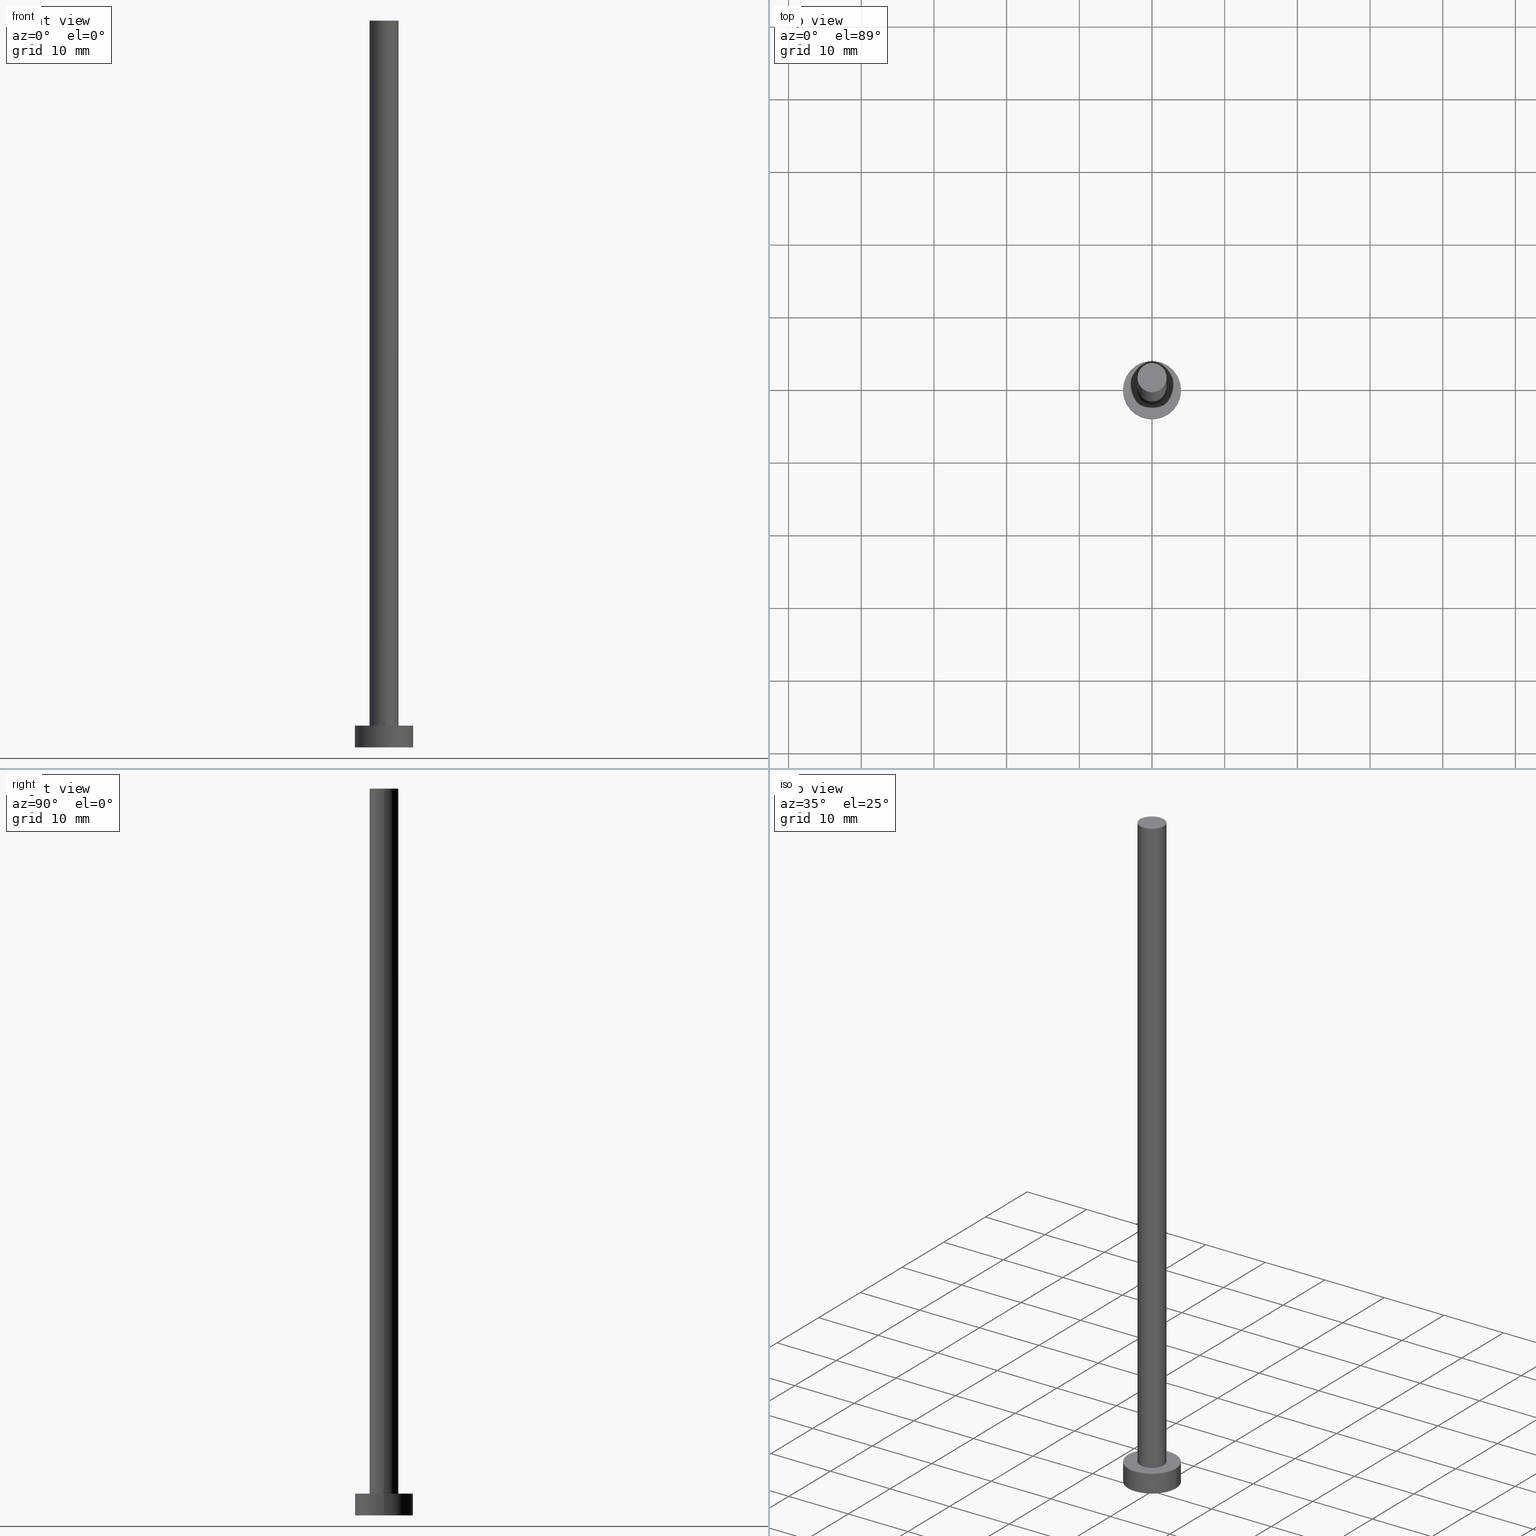
[diagram: canonical four-view strip — front | top / right | iso, engineering-drawing reading convention]
A machine part, canonical four-view strip (front | top / right | iso — engineering-drawing reading convention). The complete STEP part file that produces these views, byte-faithful:
ISO-10303-21;
HEADER;
FILE_DESCRIPTION (( 'STEP AP203' ),
    '1' );
FILE_NAME ('65ca.STEP',
    '2023-02-13T15:33:52',
    ( '' ),
    ( '' ),
    'SwSTEP 2.0',
    'SolidWorks 2019',
    '' );
FILE_SCHEMA (( 'CONFIG_CONTROL_DESIGN' ));
ENDSEC;

DATA;
#1 = DIRECTION ( 'NONE',  ( 1.000000000000000000, 0.000000000000000000, -0.000000000000000000 ) ) ;
#2 = DIRECTION ( 'NONE',  ( 0.000000000000000000, 0.000000000000000000, 1.000000000000000000 ) ) ;
#3 = DIRECTION ( 'NONE',  ( 1.000000000000000000, 0.000000000000000000, 0.000000000000000000 ) ) ;
#4 = DIRECTION ( 'NONE',  ( 0.000000000000000000, 0.000000000000000000, 1.000000000000000000 ) ) ;
#5 = EDGE_LOOP ( 'NONE', ( #64, #246, #200, #195 ) ) ;
#6 = AXIS2_PLACEMENT_3D ( 'NONE', #87, #191, #193 ) ;
#7 = DIRECTION ( 'NONE',  ( 0.000000000000000000, 0.000000000000000000, 1.000000000000000000 ) ) ;
#8 = EDGE_LOOP ( 'NONE', ( #243, #105, #41, #53 ) ) ;
#9 = UNCERTAINTY_MEASURE_WITH_UNIT (LENGTH_MEASURE( 1.000000000000000082E-05 ), #49, 'distance_accuracy_value', 'NONE');
#10 = CC_DESIGN_PERSON_AND_ORGANIZATION_ASSIGNMENT ( #24, #128, ( #23 ) ) ;
#11 = DIRECTION ( 'NONE',  ( 1.000000000000000000, 0.000000000000000000, 0.000000000000000000 ) ) ;
#12 = APPROVAL_STATUS ( 'not_yet_approved' ) ;
#13 = DATE_AND_TIME ( #94, #67 ) ;
#14 = SHAPE_DEFINITION_REPRESENTATION ( #245, #240 ) ;
#15 = DIRECTION ( 'NONE',  ( 0.000000000000000000, 0.000000000000000000, 1.000000000000000000 ) ) ;
#16 = CC_DESIGN_PERSON_AND_ORGANIZATION_ASSIGNMENT ( #52, #130, ( #93 ) ) ;
#17 = DIRECTION ( 'NONE',  ( -0.000000000000000000, -0.000000000000000000, -1.000000000000000000 ) ) ;
#18 = EDGE_CURVE ( 'NONE', #198, #66, #110, .T. ) ;
#19 = FACE_OUTER_BOUND ( 'NONE', #202, .T. ) ;
#20 = VERTEX_POINT ( 'NONE', #133 ) ;
#21 = CARTESIAN_POINT ( 'NONE',  ( 0.000000000000000000, 0.000000000000000000, 3.000000000000000000 ) ) ;
#22 = ORIENTED_EDGE ( 'NONE', *, *, #206, .T. ) ;
#23 = PRODUCT ( '65ca', '65ca', '', ( #162 ) ) ;
#24 = PERSON_AND_ORGANIZATION ( #131, #137 ) ;
#25 = ORIENTED_EDGE ( 'NONE', *, *, #217, .T. ) ;
#26 = MANIFOLD_SOLID_BREP ( 'P�idat vysunut�m3', #142 ) ;
#27 = COORDINATED_UNIVERSAL_TIME_OFFSET ( 1, 0, .AHEAD. ) ;
#28 = ORIENTED_EDGE ( 'NONE', *, *, #206, .F. ) ;
#29 = COORDINATED_UNIVERSAL_TIME_OFFSET ( 1, 0, .AHEAD. ) ;
#30 = AXIS2_PLACEMENT_3D ( 'NONE', #96, #15, #152 ) ;
#31 = DIRECTION ( 'NONE',  ( 0.000000000000000000, 0.000000000000000000, 1.000000000000000000 ) ) ;
#32 = CALENDAR_DATE ( 2023, 13, 2 ) ;
#33 = LINE ( 'NONE', #35, #48 ) ;
#34 = CC_DESIGN_DATE_AND_TIME_ASSIGNMENT ( #180, #164, ( #95 ) ) ;
#35 = CARTESIAN_POINT ( 'NONE',  ( 2.000000000000000000, 2.449293598294705921E-16, 100.0000000000000000 ) ) ;
#36 = CIRCLE ( 'NONE', #153, 2.000000000000000000 ) ;
#37 = PRODUCT_DEFINITION_FORMATION_WITH_SPECIFIED_SOURCE ( 'LIBOVOLN�', '', #23, .NOT_KNOWN. ) ;
#38 = CARTESIAN_POINT ( 'NONE',  ( 0.000000000000000000, 0.000000000000000000, 100.0000000000000000 ) ) ;
#39 = EDGE_LOOP ( 'NONE', ( #126, #45, #227, #144 ) ) ;
#40 = CARTESIAN_POINT ( 'NONE',  ( 2.000000000000000000, 2.449293598294705921E-16, 3.000000000000000000 ) ) ;
#41 = ORIENTED_EDGE ( 'NONE', *, *, #135, .T. ) ;
#42 = AXIS2_PLACEMENT_3D ( 'NONE', #174, #171, #1 ) ;
#43 = LOCAL_TIME ( 16, 33, 52.00000000000000000, #127 ) ;
#44 = DIRECTION ( 'NONE',  ( -1.000000000000000000, 0.000000000000000000, 0.000000000000000000 ) ) ;
#45 = ORIENTED_EDGE ( 'NONE', *, *, #148, .T. ) ;
#46 = APPROVAL ( #182, 'NEUR�EN�' ) ;
#47 = DIRECTION ( 'NONE',  ( 1.000000000000000000, 0.000000000000000000, 0.000000000000000000 ) ) ;
#48 = VECTOR ( 'NONE', #211, 1000.000000000000000 ) ;
#49 =( LENGTH_UNIT ( ) NAMED_UNIT ( * ) SI_UNIT ( .MILLI., .METRE. ) );
#50 = APPROVAL_PERSON_ORGANIZATION ( #72, #230, #247 ) ;
#51 = ORIENTED_EDGE ( 'NONE', *, *, #148, .F. ) ;
#52 = PERSON_AND_ORGANIZATION ( #131, #137 ) ;
#53 = ORIENTED_EDGE ( 'NONE', *, *, #18, .T. ) ;
#54 = EDGE_CURVE ( 'NONE', #122, #66, #210, .T. ) ;
#55 = APPLICATION_PROTOCOL_DEFINITION ( 'international standard', 'config_control_design', 1994, #117 ) ;
#56 = CIRCLE ( 'NONE', #236, 2.000000000000000000 ) ;
#57 = LOCAL_TIME ( 16, 33, 52.00000000000000000, #27 ) ;
#58 = DIRECTION ( 'NONE',  ( 1.000000000000000000, 0.000000000000000000, 0.000000000000000000 ) ) ;
#59 = PLANE ( 'NONE',  #42 ) ;
#60 = LINE ( 'NONE', #155, #253 ) ;
#61 = EDGE_CURVE ( 'NONE', #232, #160, #56, .T. ) ;
#62 = CARTESIAN_POINT ( 'NONE',  ( 0.000000000000000000, 0.000000000000000000, 100.0000000000000000 ) ) ;
#63 = CC_DESIGN_PERSON_AND_ORGANIZATION_ASSIGNMENT ( #201, #107, ( #95 ) ) ;
#64 = ORIENTED_EDGE ( 'NONE', *, *, #217, .F. ) ;
#65 = CYLINDRICAL_SURFACE ( 'NONE', #143, 4.000000000000000000 ) ;
#66 = VERTEX_POINT ( 'NONE', #116 ) ;
#67 = LOCAL_TIME ( 16, 33, 52.00000000000000000, #185 ) ;
#68 = CARTESIAN_POINT ( 'NONE',  ( 0.000000000000000000, 0.000000000000000000, 0.000000000000000000 ) ) ;
#69 =( NAMED_UNIT ( * ) SI_UNIT ( $, .STERADIAN. ) SOLID_ANGLE_UNIT ( ) );
#70 = CARTESIAN_POINT ( 'NONE',  ( 4.000000000000000000, 4.898587196589412829E-16, 3.000000000000000000 ) ) ;
#71 = DIRECTION ( 'NONE',  ( 1.000000000000000000, 0.000000000000000000, -0.000000000000000000 ) ) ;
#72 = PERSON_AND_ORGANIZATION ( #131, #137 ) ;
#73 = FACE_OUTER_BOUND ( 'NONE', #178, .T. ) ;
#74 = CARTESIAN_POINT ( 'NONE',  ( -4.000000000000000000, 0.000000000000000000, 3.000000000000000000 ) ) ;
#75 = DIRECTION ( 'NONE',  ( 0.000000000000000000, 0.000000000000000000, 1.000000000000000000 ) ) ;
#76 = VECTOR ( 'NONE', #134, 1000.000000000000000 ) ;
#77 = APPLICATION_CONTEXT ( 'configuration controlled 3d designs of mechanical parts and assemblies' ) ;
#78 = CARTESIAN_POINT ( 'NONE',  ( 0.000000000000000000, 0.000000000000000000, 100.0000000000000000 ) ) ;
#79 = CC_DESIGN_DATE_AND_TIME_ASSIGNMENT ( #184, #189, ( #93 ) ) ;
#80 = CARTESIAN_POINT ( 'NONE',  ( 2.000000000000000000, 2.449293598294705921E-16, 100.0000000000000000 ) ) ;
#81 = AXIS2_PLACEMENT_3D ( 'NONE', #21, #103, #140 ) ;
#82 = ORIENTED_EDGE ( 'NONE', *, *, #18, .F. ) ;
#83 = DIRECTION ( 'NONE',  ( -1.000000000000000000, 0.000000000000000000, 0.000000000000000000 ) ) ;
#84 = EDGE_CURVE ( 'NONE', #221, #122, #157, .T. ) ;
#85 = ORIENTED_EDGE ( 'NONE', *, *, #98, .F. ) ;
#86 = DIRECTION ( 'NONE',  ( -0.000000000000000000, -0.000000000000000000, -1.000000000000000000 ) ) ;
#87 = CARTESIAN_POINT ( 'NONE',  ( 0.000000000000000000, 0.000000000000000000, 3.000000000000000000 ) ) ;
#88 = APPLICATION_PROTOCOL_DEFINITION ( 'international standard', 'config_control_design', 1994, #77 ) ;
#89 = ORIENTED_EDGE ( 'NONE', *, *, #213, .T. ) ;
#90 = APPROVAL_DATE_TIME ( #13, #46 ) ;
#91 = VECTOR ( 'NONE', #205, 1000.000000000000000 ) ;
#92 =( NAMED_UNIT ( * ) PLANE_ANGLE_UNIT ( ) SI_UNIT ( $, .RADIAN. ) );
#93 = SECURITY_CLASSIFICATION ( '', '', #248 ) ;
#94 = CALENDAR_DATE ( 2023, 13, 2 ) ;
#95 = PRODUCT_DEFINITION ( 'NEZN�M�', '', #37, #124 ) ;
#96 = CARTESIAN_POINT ( 'NONE',  ( 0.000000000000000000, 0.000000000000000000, 0.000000000000000000 ) ) ;
#97 = APPROVAL_ROLE ( '' ) ;
#98 = EDGE_CURVE ( 'NONE', #66, #198, #216, .T. ) ;
#99 = CARTESIAN_POINT ( 'NONE',  ( -2.000000000000000000, 0.000000000000000000, 100.0000000000000000 ) ) ;
#100 = FACE_OUTER_BOUND ( 'NONE', #5, .T. ) ;
#101 = CC_DESIGN_PERSON_AND_ORGANIZATION_ASSIGNMENT ( #165, #250, ( #37 ) ) ;
#102 = FACE_OUTER_BOUND ( 'NONE', #252, .T. ) ;
#103 = DIRECTION ( 'NONE',  ( -0.000000000000000000, -0.000000000000000000, -1.000000000000000000 ) ) ;
#104 = EDGE_CURVE ( 'NONE', #225, #20, #36, .T. ) ;
#105 = ORIENTED_EDGE ( 'NONE', *, *, #84, .F. ) ;
#106 = CARTESIAN_POINT ( 'NONE',  ( 0.000000000000000000, 0.000000000000000000, 3.000000000000000000 ) ) ;
#107 = PERSON_AND_ORGANIZATION_ROLE ( 'creator' ) ;
#108 = CIRCLE ( 'NONE', #6, 4.000000000000000000 ) ;
#109 = CARTESIAN_POINT ( 'NONE',  ( 0.000000000000000000, 0.000000000000000000, 100.0000000000000000 ) ) ;
#110 = CIRCLE ( 'NONE', #176, 4.000000000000000000 ) ;
#111 = CALENDAR_DATE ( 2023, 13, 2 ) ;
#112 = CC_DESIGN_APPROVAL ( #46, ( #95 ) ) ;
#113 = DIRECTION ( 'NONE',  ( 1.000000000000000000, 0.000000000000000000, 0.000000000000000000 ) ) ;
#114 = AXIS2_PLACEMENT_3D ( 'NONE', #68, #4, #145 ) ;
#115 = AXIS2_PLACEMENT_3D ( 'NONE', #62, #177, #71 ) ;
#116 = CARTESIAN_POINT ( 'NONE',  ( 4.000000000000000000, 4.898587196589412829E-16, 0.000000000000000000 ) ) ;
#117 = APPLICATION_CONTEXT ( 'configuration controlled 3d designs of mechanical parts and assemblies' ) ;
#118 = AXIS2_PLACEMENT_3D ( 'NONE', #226, #31, #47 ) ;
#119 = FACE_OUTER_BOUND ( 'NONE', #8, .T. ) ;
#120 = ADVANCED_FACE ( 'NONE', ( #255, #73 ), #59, .T. ) ;
#121 = CARTESIAN_POINT ( 'NONE',  ( 0.000000000000000000, 0.000000000000000000, 100.0000000000000000 ) ) ;
#122 = VERTEX_POINT ( 'NONE', #237 ) ;
#123 = AXIS2_PLACEMENT_3D ( 'NONE', #187, #75, #154 ) ;
#124 = DESIGN_CONTEXT ( 'detailed design', #117, 'design' ) ;
#125 = CYLINDRICAL_SURFACE ( 'NONE', #168, 2.000000000000000000 ) ;
#126 = ORIENTED_EDGE ( 'NONE', *, *, #61, .F. ) ;
#127 = COORDINATED_UNIVERSAL_TIME_OFFSET ( 1, 0, .AHEAD. ) ;
#128 = PERSON_AND_ORGANIZATION_ROLE ( 'design_owner' ) ;
#129 = CARTESIAN_POINT ( 'NONE',  ( 0.000000000000000000, 0.000000000000000000, 0.000000000000000000 ) ) ;
#130 = PERSON_AND_ORGANIZATION_ROLE ( 'classification_officer' ) ;
#131 = PERSON ( 'NEUR�EN�', 'NEUR�EN�', 'NEUR�EN�', ('NEUR�EN�'), ('NEUR�EN�'), ('NEUR�EN�') ) ;
#132 = PERSON_AND_ORGANIZATION ( #131, #137 ) ;
#133 = CARTESIAN_POINT ( 'NONE',  ( -2.000000000000000000, 0.000000000000000000, 3.000000000000000000 ) ) ;
#134 = DIRECTION ( 'NONE',  ( -0.000000000000000000, -0.000000000000000000, -1.000000000000000000 ) ) ;
#135 = EDGE_CURVE ( 'NONE', #221, #198, #214, .T. ) ;
#136 = CARTESIAN_POINT ( 'NONE',  ( 0.000000000000000000, 0.000000000000000000, 3.000000000000000000 ) ) ;
#137 = ORGANIZATION ( 'NEUR�EN�', 'NEUR�EN�', '' ) ;
#138 = CYLINDRICAL_SURFACE ( 'NONE', #234, 2.000000000000000000 ) ;
#139 = ORIENTED_EDGE ( 'NONE', *, *, #84, .T. ) ;
#140 = DIRECTION ( 'NONE',  ( -1.000000000000000000, 0.000000000000000000, 0.000000000000000000 ) ) ;
#141 = ORIENTED_EDGE ( 'NONE', *, *, #167, .T. ) ;
#142 = CLOSED_SHELL ( 'NONE', ( #172, #197, #183, #120, #192, #222, #235 ) ) ;
#143 = AXIS2_PLACEMENT_3D ( 'NONE', #106, #159, #161 ) ;
#144 = ORIENTED_EDGE ( 'NONE', *, *, #167, .F. ) ;
#145 = DIRECTION ( 'NONE',  ( 1.000000000000000000, 0.000000000000000000, -0.000000000000000000 ) ) ;
#146 = DATE_AND_TIME ( #207, #43 ) ;
#147 = CALENDAR_DATE ( 2023, 13, 2 ) ;
#148 = EDGE_CURVE ( 'NONE', #232, #225, #33, .T. ) ;
#149 = COORDINATED_UNIVERSAL_TIME_OFFSET ( 1, 0, .AHEAD. ) ;
#150 = DIRECTION ( 'NONE',  ( 0.000000000000000000, 0.000000000000000000, 1.000000000000000000 ) ) ;
#151 = AXIS2_PLACEMENT_3D ( 'NONE', #199, #179, #3 ) ;
#152 = DIRECTION ( 'NONE',  ( 1.000000000000000000, 0.000000000000000000, 0.000000000000000000 ) ) ;
#153 = AXIS2_PLACEMENT_3D ( 'NONE', #136, #212, #169 ) ;
#154 = DIRECTION ( 'NONE',  ( 1.000000000000000000, 0.000000000000000000, 0.000000000000000000 ) ) ;
#155 = CARTESIAN_POINT ( 'NONE',  ( -2.000000000000000000, 0.000000000000000000, 100.0000000000000000 ) ) ;
#156 = CARTESIAN_POINT ( 'NONE',  ( -4.000000000000000000, 0.000000000000000000, 3.000000000000000000 ) ) ;
#157 = CIRCLE ( 'NONE', #123, 4.000000000000000000 ) ;
#158 =( GEOMETRIC_REPRESENTATION_CONTEXT ( 3 ) GLOBAL_UNCERTAINTY_ASSIGNED_CONTEXT ( ( #9 ) ) GLOBAL_UNIT_ASSIGNED_CONTEXT ( ( #49, #92, #69 ) ) REPRESENTATION_CONTEXT ( 'NONE', 'WORKASPACE' ) );
#159 = DIRECTION ( 'NONE',  ( -0.000000000000000000, -0.000000000000000000, -1.000000000000000000 ) ) ;
#160 = VERTEX_POINT ( 'NONE', #99 ) ;
#161 = DIRECTION ( 'NONE',  ( -1.000000000000000000, 0.000000000000000000, 0.000000000000000000 ) ) ;
#162 = MECHANICAL_CONTEXT ( 'NONE', #77, 'mechanical' ) ;
#163 = PERSON_AND_ORGANIZATION ( #131, #137 ) ;
#164 = DATE_TIME_ROLE ( 'creation_date' ) ;
#165 = PERSON_AND_ORGANIZATION ( #131, #137 ) ;
#166 = EDGE_LOOP ( 'NONE', ( #28, #220 ) ) ;
#167 = EDGE_CURVE ( 'NONE', #160, #20, #60, .T. ) ;
#168 = AXIS2_PLACEMENT_3D ( 'NONE', #38, #175, #44 ) ;
#169 = DIRECTION ( 'NONE',  ( 1.000000000000000000, 0.000000000000000000, 0.000000000000000000 ) ) ;
#170 = APPROVAL_DATE_TIME ( #186, #188 ) ;
#171 = DIRECTION ( 'NONE',  ( 0.000000000000000000, 0.000000000000000000, 1.000000000000000000 ) ) ;
#172 = ADVANCED_FACE ( 'NONE', ( #244 ), #125, .T. ) ;
#173 = LOCAL_TIME ( 16, 33, 52.00000000000000000, #149 ) ;
#174 = CARTESIAN_POINT ( 'NONE',  ( 0.000000000000000000, 0.000000000000000000, 3.000000000000000000 ) ) ;
#175 = DIRECTION ( 'NONE',  ( -0.000000000000000000, -0.000000000000000000, -1.000000000000000000 ) ) ;
#176 = AXIS2_PLACEMENT_3D ( 'NONE', #129, #150, #58 ) ;
#177 = DIRECTION ( 'NONE',  ( 0.000000000000000000, 0.000000000000000000, 1.000000000000000000 ) ) ;
#178 = EDGE_LOOP ( 'NONE', ( #139, #25 ) ) ;
#179 = DIRECTION ( 'NONE',  ( 0.000000000000000000, 0.000000000000000000, 1.000000000000000000 ) ) ;
#180 = DATE_AND_TIME ( #147, #57 ) ;
#181 = EDGE_LOOP ( 'NONE', ( #51, #249, #141, #22 ) ) ;
#182 = APPROVAL_STATUS ( 'not_yet_approved' ) ;
#183 = ADVANCED_FACE ( 'NONE', ( #119 ), #65, .T. ) ;
#184 = DATE_AND_TIME ( #111, #218 ) ;
#185 = COORDINATED_UNIVERSAL_TIME_OFFSET ( 1, 0, .AHEAD. ) ;
#186 = DATE_AND_TIME ( #32, #173 ) ;
#187 = CARTESIAN_POINT ( 'NONE',  ( 0.000000000000000000, 0.000000000000000000, 3.000000000000000000 ) ) ;
#188 = APPROVAL ( #209, 'NEUR�EN�' ) ;
#189 = DATE_TIME_ROLE ( 'classification_date' ) ;
#190 = AXIS2_PLACEMENT_3D ( 'NONE', #78, #7, #11 ) ;
#191 = DIRECTION ( 'NONE',  ( 0.000000000000000000, 0.000000000000000000, 1.000000000000000000 ) ) ;
#192 = ADVANCED_FACE ( 'NONE', ( #102 ), #194, .F. ) ;
#193 = DIRECTION ( 'NONE',  ( 1.000000000000000000, 0.000000000000000000, 0.000000000000000000 ) ) ;
#194 = PLANE ( 'NONE',  #114 ) ;
#195 = ORIENTED_EDGE ( 'NONE', *, *, #135, .F. ) ;
#196 = CC_DESIGN_APPROVAL ( #230, ( #37 ) ) ;
#197 = ADVANCED_FACE ( 'NONE', ( #100 ), #224, .T. ) ;
#198 = VERTEX_POINT ( 'NONE', #219 ) ;
#199 = CARTESIAN_POINT ( 'NONE',  ( 0.000000000000000000, 0.000000000000000000, 3.000000000000000000 ) ) ;
#200 = ORIENTED_EDGE ( 'NONE', *, *, #98, .T. ) ;
#201 = PERSON_AND_ORGANIZATION ( #131, #137 ) ;
#202 = EDGE_LOOP ( 'NONE', ( #89, #241 ) ) ;
#203 = APPROVAL_PERSON_ORGANIZATION ( #163, #46, #233 ) ;
#204 = PERSON_AND_ORGANIZATION_ROLE ( 'design_supplier' ) ;
#205 = DIRECTION ( 'NONE',  ( -0.000000000000000000, -0.000000000000000000, -1.000000000000000000 ) ) ;
#206 = EDGE_CURVE ( 'NONE', #20, #225, #229, .T. ) ;
#207 = CALENDAR_DATE ( 2023, 13, 2 ) ;
#208 = CC_DESIGN_SECURITY_CLASSIFICATION ( #93, ( #37 ) ) ;
#209 = APPROVAL_STATUS ( 'not_yet_approved' ) ;
#210 = LINE ( 'NONE', #70, #91 ) ;
#211 = DIRECTION ( 'NONE',  ( -0.000000000000000000, -0.000000000000000000, -1.000000000000000000 ) ) ;
#212 = DIRECTION ( 'NONE',  ( 0.000000000000000000, 0.000000000000000000, 1.000000000000000000 ) ) ;
#213 = EDGE_CURVE ( 'NONE', #160, #232, #223, .T. ) ;
#214 = LINE ( 'NONE', #74, #76 ) ;
#215 = CC_DESIGN_PERSON_AND_ORGANIZATION_ASSIGNMENT ( #228, #204, ( #37 ) ) ;
#216 = CIRCLE ( 'NONE', #30, 4.000000000000000000 ) ;
#217 = EDGE_CURVE ( 'NONE', #122, #221, #108, .T. ) ;
#218 = LOCAL_TIME ( 16, 33, 52.00000000000000000, #29 ) ;
#219 = CARTESIAN_POINT ( 'NONE',  ( -4.000000000000000000, 0.000000000000000000, 0.000000000000000000 ) ) ;
#220 = ORIENTED_EDGE ( 'NONE', *, *, #104, .F. ) ;
#221 = VERTEX_POINT ( 'NONE', #156 ) ;
#222 = ADVANCED_FACE ( 'NONE', ( #239 ), #138, .T. ) ;
#223 = CIRCLE ( 'NONE', #190, 2.000000000000000000 ) ;
#224 = CYLINDRICAL_SURFACE ( 'NONE', #81, 4.000000000000000000 ) ;
#225 = VERTEX_POINT ( 'NONE', #40 ) ;
#226 = CARTESIAN_POINT ( 'NONE',  ( 0.000000000000000000, 0.000000000000000000, 0.000000000000000000 ) ) ;
#227 = ORIENTED_EDGE ( 'NONE', *, *, #104, .T. ) ;
#228 = PERSON_AND_ORGANIZATION ( #131, #137 ) ;
#229 = CIRCLE ( 'NONE', #151, 2.000000000000000000 ) ;
#230 = APPROVAL ( #12, 'NEUR�EN�' ) ;
#231 = APPROVAL_DATE_TIME ( #146, #230 ) ;
#232 = VERTEX_POINT ( 'NONE', #80 ) ;
#233 = APPROVAL_ROLE ( '' ) ;
#234 = AXIS2_PLACEMENT_3D ( 'NONE', #121, #17, #83 ) ;
#235 = ADVANCED_FACE ( 'NONE', ( #19 ), #242, .T. ) ;
#236 = AXIS2_PLACEMENT_3D ( 'NONE', #109, #2, #113 ) ;
#237 = CARTESIAN_POINT ( 'NONE',  ( 4.000000000000000000, 4.898587196589412829E-16, 3.000000000000000000 ) ) ;
#238 = CC_DESIGN_APPROVAL ( #188, ( #93 ) ) ;
#239 = FACE_OUTER_BOUND ( 'NONE', #181, .T. ) ;
#240 = ADVANCED_BREP_SHAPE_REPRESENTATION ( '65ca', ( #26, #118 ), #158 ) ;
#241 = ORIENTED_EDGE ( 'NONE', *, *, #61, .T. ) ;
#242 = PLANE ( 'NONE',  #115 ) ;
#243 = ORIENTED_EDGE ( 'NONE', *, *, #54, .F. ) ;
#244 = FACE_OUTER_BOUND ( 'NONE', #39, .T. ) ;
#245 = PRODUCT_DEFINITION_SHAPE ( 'NONE', 'NONE',  #95 ) ;
#246 = ORIENTED_EDGE ( 'NONE', *, *, #54, .T. ) ;
#247 = APPROVAL_ROLE ( '' ) ;
#248 = SECURITY_CLASSIFICATION_LEVEL ( 'unclassified' ) ;
#249 = ORIENTED_EDGE ( 'NONE', *, *, #213, .F. ) ;
#250 = PERSON_AND_ORGANIZATION_ROLE ( 'creator' ) ;
#251 = PRODUCT_RELATED_PRODUCT_CATEGORY ( 'detail', '', ( #23 ) ) ;
#252 = EDGE_LOOP ( 'NONE', ( #82, #85 ) ) ;
#253 = VECTOR ( 'NONE', #86, 1000.000000000000000 ) ;
#254 = APPROVAL_PERSON_ORGANIZATION ( #132, #188, #97 ) ;
#255 = FACE_BOUND ( 'NONE', #166, .T. ) ;
ENDSEC;
END-ISO-10303-21;
